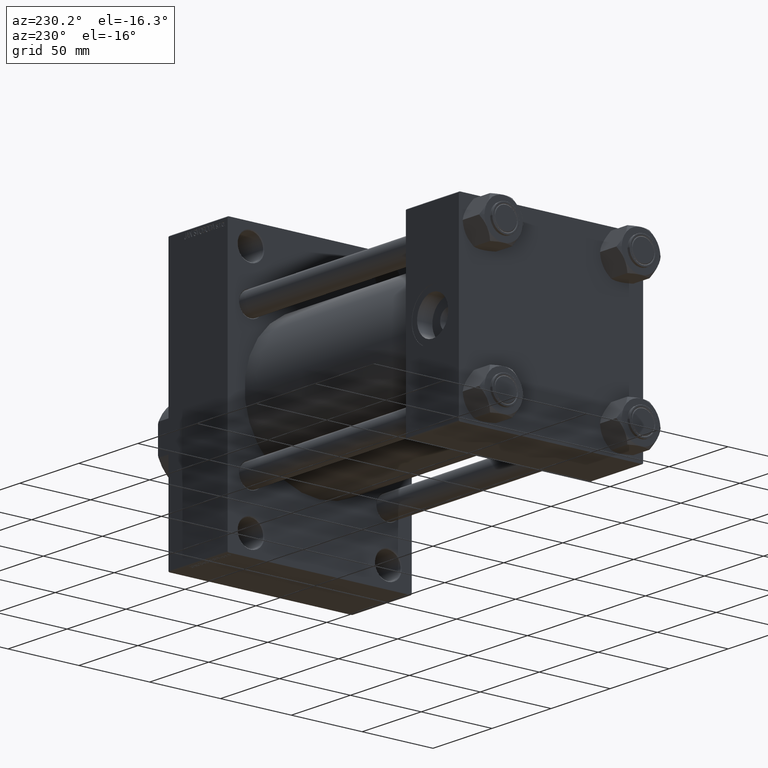
[diagram: clean part render]
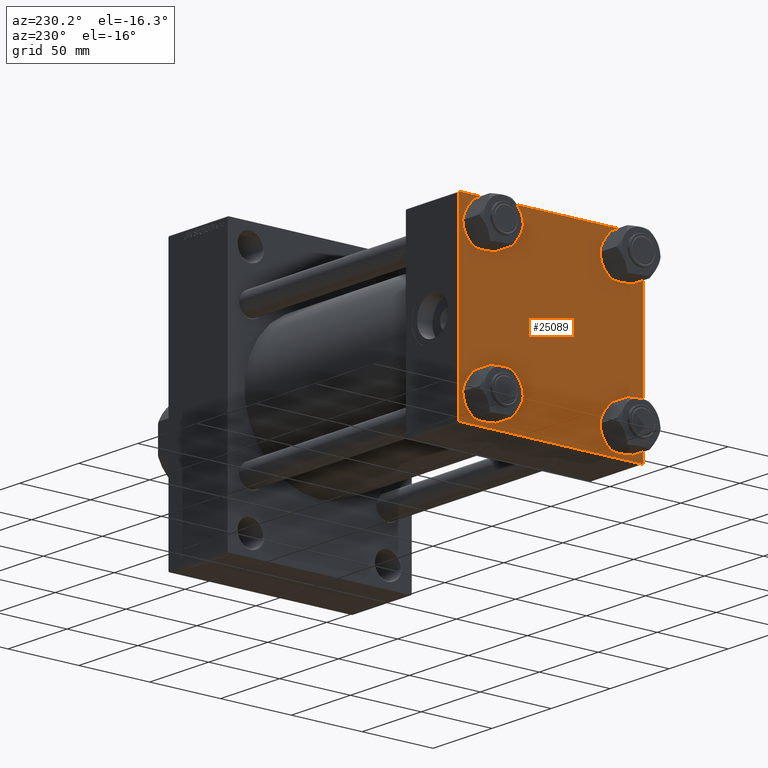
[diagram: same view with one face highlighted and labeled with its STEP entity id]
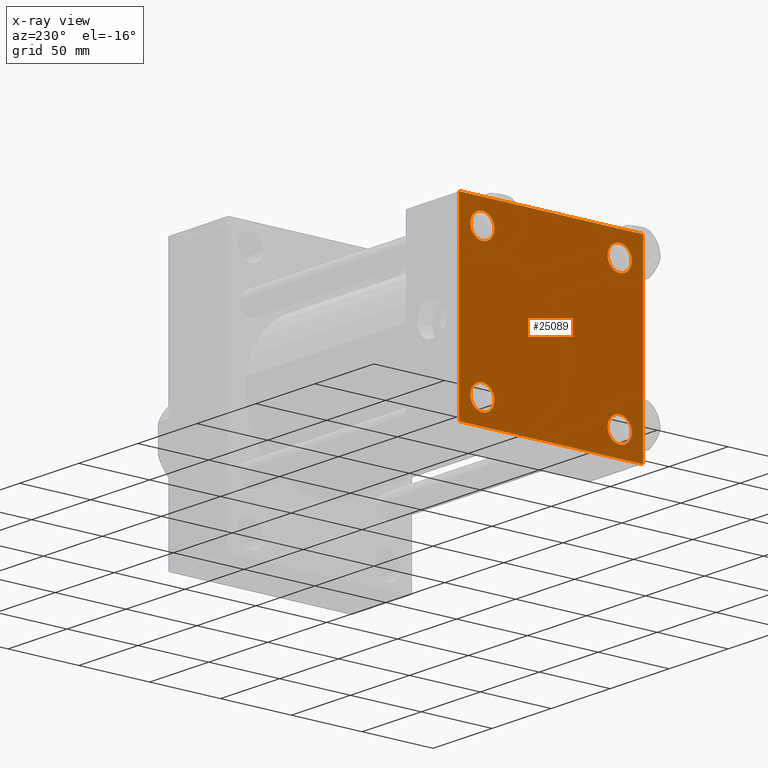
[diagram: x-ray of the same camera — body ghosted, the highlighted face saturated]
A machine part, auxiliary view. The second image highlights one B-rep face of the part: STEP entity #25089.
The next image is the same camera in x-ray: the body ghosted, the highlighted face saturated — about 0% of this face is hidden behind the body in this view.
In plain terms, the highlighted planar face has unit normal (-1, 0, 0).
Its self-contained STEP definition (entity closure, byte-faithful):
#50 = DIRECTION ( 'NONE',  ( 0.000000000000000000, 0.000000000000000000, 1.000000000000000000 ) ) ;
#341 = CARTESIAN_POINT ( 'NONE',  ( 0.000000000000000000, 65.00000000000000000, -64.99999999999998579 ) ) ;
#348 = CARTESIAN_POINT ( 'NONE',  ( 0.000000000000000000, -64.49999999999994316, -65.00000000000000000 ) ) ;
#444 = LINE ( 'NONE', #4795, #8069 ) ;
#877 = ORIENTED_EDGE ( 'NONE', *, *, #10914, .T. ) ;
#1739 = CIRCLE ( 'NONE', #29660, 8.500000000000007105 ) ;
#2500 = DIRECTION ( 'NONE',  ( 0.000000000000000000, 0.000000000000000000, 1.000000000000000000 ) ) ;
#2782 = LINE ( 'NONE', #32388, #3730 ) ;
#3037 = DIRECTION ( 'NONE',  ( 0.000000000000000000, 0.000000000000000000, 1.000000000000000000 ) ) ;
#3500 = CARTESIAN_POINT ( 'NONE',  ( 0.000000000000000000, 48.45000000000000995, 56.95000000000002416 ) ) ;
#3523 = DIRECTION ( 'NONE',  ( 1.000000000000000000, -0.000000000000000000, 0.000000000000000000 ) ) ;
#3730 = VECTOR ( 'NONE', #43516, 1000.000000000000000 ) ;
#4037 = EDGE_CURVE ( 'NONE', #20264, #32125, #26768, .T. ) ;
#4182 = ORIENTED_EDGE ( 'NONE', *, *, #46093, .T. ) ;
#4229 = AXIS2_PLACEMENT_3D ( 'NONE', #29167, #18230, #50 ) ;
#4795 = CARTESIAN_POINT ( 'NONE',  ( 0.000000000000000000, -65.00000000000000000, 65.00000000000000000 ) ) ;
#4888 = VERTEX_POINT ( 'NONE', #43156 ) ;
#5146 = ORIENTED_EDGE ( 'NONE', *, *, #22278, .T. ) ;
#5953 = EDGE_CURVE ( 'NONE', #24107, #20264, #9529, .T. ) ;
#6008 = DIRECTION ( 'NONE',  ( 0.000000000000000000, 0.000000000000000000, 1.000000000000000000 ) ) ;
#6447 = DIRECTION ( 'NONE',  ( 0.000000000000000000, 0.000000000000000000, 1.000000000000000000 ) ) ;
#6735 = CARTESIAN_POINT ( 'NONE',  ( 0.000000000000000000, 48.45000000000000995, 48.45000000000001705 ) ) ;
#6920 = DIRECTION ( 'NONE',  ( 1.000000000000000000, -0.000000000000000000, 0.000000000000000000 ) ) ;
#7768 = VECTOR ( 'NONE', #38964, 1000.000000000000000 ) ;
#7822 = EDGE_LOOP ( 'NONE', ( #28182, #877 ) ) ;
#8069 = VECTOR ( 'NONE', #44812, 1000.000000000000000 ) ;
#8886 = CARTESIAN_POINT ( 'NONE',  ( 0.000000000000000000, -64.75000000000176215, -64.74999999999816680 ) ) ;
#9493 = EDGE_LOOP ( 'NONE', ( #24057, #40427 ) ) ;
#9529 = LINE ( 'NONE', #28209, #23877 ) ;
#9870 = CARTESIAN_POINT ( 'NONE',  ( 0.000000000000000000, 64.49999999999997158, -64.99999999999998579 ) ) ;
#9975 = FACE_BOUND ( 'NONE', #7822, .T. ) ;
#10750 = ORIENTED_EDGE ( 'NONE', *, *, #37768, .T. ) ;
#10791 = CIRCLE ( 'NONE', #20856, 8.500000000000007105 ) ;
#10914 = EDGE_CURVE ( 'NONE', #34012, #33128, #24717, .T. ) ;
#11177 = FACE_BOUND ( 'NONE', #37533, .T. ) ;
#11956 = LINE ( 'NONE', #29921, #39620 ) ;
#12423 = VERTEX_POINT ( 'NONE', #47051 ) ;
#12911 = EDGE_CURVE ( 'NONE', #25701, #20646, #29975, .T. ) ;
#13349 = DIRECTION ( 'NONE',  ( 1.000000000000000000, -0.000000000000000000, 0.000000000000000000 ) ) ;
#13607 = FACE_BOUND ( 'NONE', #18176, .T. ) ;
#13945 = CARTESIAN_POINT ( 'NONE',  ( 0.000000000000000000, 64.74999999999998579, 64.74999999999998579 ) ) ;
#13976 = CARTESIAN_POINT ( 'NONE',  ( 0.000000000000000000, 48.45000000000000995, 48.45000000000001705 ) ) ;
#15007 = EDGE_CURVE ( 'NONE', #18476, #22942, #2782, .T. ) ;
#15269 = DIRECTION ( 'NONE',  ( -1.000000000000000000, 0.000000000000000000, -0.000000000000000000 ) ) ;
#15284 = DIRECTION ( 'NONE',  ( 1.000000000000000000, -0.000000000000000000, 0.000000000000000000 ) ) ;
#15349 = DIRECTION ( 'NONE',  ( 0.000000000000000000, -1.000000000000000000, -1.067522139062650425E-16 ) ) ;
#15841 = DIRECTION ( 'NONE',  ( 0.000000000000000000, 0.000000000000000000, 1.000000000000000000 ) ) ;
#15885 = VERTEX_POINT ( 'NONE', #25521 ) ;
#17714 = ORIENTED_EDGE ( 'NONE', *, *, #44809, .T. ) ;
#18176 = EDGE_LOOP ( 'NONE', ( #4182, #10750 ) ) ;
#18181 = CIRCLE ( 'NONE', #4229, 8.500000000000007105 ) ;
#18230 = DIRECTION ( 'NONE',  ( 1.000000000000000000, -0.000000000000000000, 0.000000000000000000 ) ) ;
#18476 = VERTEX_POINT ( 'NONE', #26619 ) ;
#18673 = ORIENTED_EDGE ( 'NONE', *, *, #21949, .T. ) ;
#20106 = ORIENTED_EDGE ( 'NONE', *, *, #15007, .F. ) ;
#20264 = VERTEX_POINT ( 'NONE', #9870 ) ;
#20646 = VERTEX_POINT ( 'NONE', #3500 ) ;
#20741 = LINE ( 'NONE', #13945, #29429 ) ;
#20773 = DIRECTION ( 'NONE',  ( 1.000000000000000000, -0.000000000000000000, 0.000000000000000000 ) ) ;
#20856 = AXIS2_PLACEMENT_3D ( 'NONE', #6735, #21523, #6008 ) ;
#20929 = CARTESIAN_POINT ( 'NONE',  ( 0.000000000000000000, -48.44999999999999574, 48.45000000000003126 ) ) ;
#20951 = AXIS2_PLACEMENT_3D ( 'NONE', #37122, #15269, #41237 ) ;
#20975 = LINE ( 'NONE', #40144, #38892 ) ;
#21175 = EDGE_CURVE ( 'NONE', #45145, #44627, #28623, .T. ) ;
#21523 = DIRECTION ( 'NONE',  ( 1.000000000000000000, -0.000000000000000000, 0.000000000000000000 ) ) ;
#21949 = EDGE_CURVE ( 'NONE', #20646, #25701, #10791, .T. ) ;
#21975 = VERTEX_POINT ( 'NONE', #39719 ) ;
#22278 = EDGE_CURVE ( 'NONE', #18476, #21975, #20741, .T. ) ;
#22495 = EDGE_CURVE ( 'NONE', #44627, #45145, #25553, .T. ) ;
#22942 = VERTEX_POINT ( 'NONE', #45257 ) ;
#23090 = CARTESIAN_POINT ( 'NONE',  ( 0.000000000000000000, 48.45000000000000995, 39.95000000000000284 ) ) ;
#23746 = EDGE_CURVE ( 'NONE', #32125, #12423, #42131, .T. ) ;
#23877 = VECTOR ( 'NONE', #31852, 1000.000000000000114 ) ;
#24057 = ORIENTED_EDGE ( 'NONE', *, *, #22495, .T. ) ;
#24107 = VERTEX_POINT ( 'NONE', #41262 ) ;
#24505 = CARTESIAN_POINT ( 'NONE',  ( 0.000000000000000000, -48.44999999999999574, -48.45000000000003126 ) ) ;
#24717 = CIRCLE ( 'NONE', #30120, 8.500000000000007105 ) ;
#24979 = CIRCLE ( 'NONE', #39687, 8.500000000000007105 ) ;
#25089 = ADVANCED_FACE ( 'NONE', ( #13607, #43198, #9975, #11177, #29617 ), #33967, .T. ) ;
#25521 = CARTESIAN_POINT ( 'NONE',  ( 0.000000000000000000, -48.44999999999999574, 56.95000000000003837 ) ) ;
#25553 = CIRCLE ( 'NONE', #44129, 8.500000000000007105 ) ;
#25701 = VERTEX_POINT ( 'NONE', #23090 ) ;
#26354 = CARTESIAN_POINT ( 'NONE',  ( 0.000000000000000000, -48.44999999999999574, -39.95000000000001705 ) ) ;
#26619 = CARTESIAN_POINT ( 'NONE',  ( 0.000000000000000000, 64.49999999999997158, 65.00000000000001421 ) ) ;
#26768 = LINE ( 'NONE', #341, #29981 ) ;
#28182 = ORIENTED_EDGE ( 'NONE', *, *, #43039, .T. ) ;
#28183 = EDGE_LOOP ( 'NONE', ( #17714, #31776, #32189, #37111, #33296, #34094, #20106, #5146 ) ) ;
#28209 = CARTESIAN_POINT ( 'NONE',  ( 0.000000000000000000, 64.74999999999997158, -64.74999999999997158 ) ) ;
#28508 = CARTESIAN_POINT ( 'NONE',  ( 0.000000000000000000, 48.45000000000000995, -48.45000000000001705 ) ) ;
#28623 = CIRCLE ( 'NONE', #29391, 8.500000000000007105 ) ;
#29167 = CARTESIAN_POINT ( 'NONE',  ( 0.000000000000000000, -48.44999999999999574, 48.45000000000003126 ) ) ;
#29391 = AXIS2_PLACEMENT_3D ( 'NONE', #33980, #15284, #30105 ) ;
#29429 = VECTOR ( 'NONE', #35790, 1000.000000000000114 ) ;
#29617 = FACE_OUTER_BOUND ( 'NONE', #28183, .T. ) ;
#29660 = AXIS2_PLACEMENT_3D ( 'NONE', #40389, #3523, #6447 ) ;
#29921 = CARTESIAN_POINT ( 'NONE',  ( -0.000000000000000000, -64.74999999999819522, 64.75000000000179057 ) ) ;
#29975 = CIRCLE ( 'NONE', #46229, 8.500000000000007105 ) ;
#29981 = VECTOR ( 'NONE', #15349, 1000.000000000000000 ) ;
#30105 = DIRECTION ( 'NONE',  ( 0.000000000000000000, 0.000000000000000000, 1.000000000000000000 ) ) ;
#30120 = AXIS2_PLACEMENT_3D ( 'NONE', #28508, #6920, #3037 ) ;
#30391 = ORIENTED_EDGE ( 'NONE', *, *, #12911, .T. ) ;
#31776 = ORIENTED_EDGE ( 'NONE', *, *, #5953, .T. ) ;
#31852 = DIRECTION ( 'NONE',  ( -0.000000000000000000, -0.7071067811865474617, -0.7071067811865474617 ) ) ;
#32125 = VERTEX_POINT ( 'NONE', #348 ) ;
#32189 = ORIENTED_EDGE ( 'NONE', *, *, #4037, .T. ) ;
#32388 = CARTESIAN_POINT ( 'NONE',  ( 0.000000000000000000, 65.00000000000000000, 65.00000000000001421 ) ) ;
#32399 = DIRECTION ( 'NONE',  ( 0.000000000000000000, 0.000000000000000000, -1.000000000000000000 ) ) ;
#33128 = VERTEX_POINT ( 'NONE', #43111 ) ;
#33296 = ORIENTED_EDGE ( 'NONE', *, *, #36573, .F. ) ;
#33967 = PLANE ( 'NONE',  #20951 ) ;
#33980 = CARTESIAN_POINT ( 'NONE',  ( 0.000000000000000000, -48.44999999999999574, -48.45000000000003126 ) ) ;
#34012 = VERTEX_POINT ( 'NONE', #34485 ) ;
#34094 = ORIENTED_EDGE ( 'NONE', *, *, #40966, .T. ) ;
#34485 = CARTESIAN_POINT ( 'NONE',  ( 0.000000000000000000, 48.45000000000000995, -56.95000000000002416 ) ) ;
#35450 = VERTEX_POINT ( 'NONE', #38315 ) ;
#35790 = DIRECTION ( 'NONE',  ( 0.000000000000000000, 0.7071067811865474617, -0.7071067811865474617 ) ) ;
#36573 = EDGE_CURVE ( 'NONE', #4888, #12423, #444, .T. ) ;
#37111 = ORIENTED_EDGE ( 'NONE', *, *, #23746, .T. ) ;
#37122 = CARTESIAN_POINT ( 'NONE',  ( 0.000000000000000000, 0.000000000000000000, 0.000000000000000000 ) ) ;
#37533 = EDGE_LOOP ( 'NONE', ( #18673, #30391 ) ) ;
#37768 = EDGE_CURVE ( 'NONE', #35450, #15885, #18181, .T. ) ;
#38315 = CARTESIAN_POINT ( 'NONE',  ( 0.000000000000000000, -48.44999999999999574, 39.95000000000001705 ) ) ;
#38892 = VECTOR ( 'NONE', #32399, 1000.000000000000000 ) ;
#38964 = DIRECTION ( 'NONE',  ( 0.000000000000000000, -0.7071067811865279218, 0.7071067811865671127 ) ) ;
#39620 = VECTOR ( 'NONE', #44695, 1000.000000000000000 ) ;
#39687 = AXIS2_PLACEMENT_3D ( 'NONE', #20929, #47600, #2500 ) ;
#39719 = CARTESIAN_POINT ( 'NONE',  ( 0.000000000000000000, 65.00000000000000000, 64.49999999999998579 ) ) ;
#40144 = CARTESIAN_POINT ( 'NONE',  ( 0.000000000000000000, 65.00000000000000000, 65.00000000000001421 ) ) ;
#40389 = CARTESIAN_POINT ( 'NONE',  ( 0.000000000000000000, 48.45000000000000995, -48.45000000000001705 ) ) ;
#40427 = ORIENTED_EDGE ( 'NONE', *, *, #21175, .T. ) ;
#40966 = EDGE_CURVE ( 'NONE', #4888, #22942, #11956, .T. ) ;
#41237 = DIRECTION ( 'NONE',  ( -0.000000000000000000, 0.000000000000000000, 1.000000000000000000 ) ) ;
#41262 = CARTESIAN_POINT ( 'NONE',  ( 0.000000000000000000, 65.00000000000000000, -64.49999999999995737 ) ) ;
#42131 = LINE ( 'NONE', #8886, #7768 ) ;
#43039 = EDGE_CURVE ( 'NONE', #33128, #34012, #1739, .T. ) ;
#43111 = CARTESIAN_POINT ( 'NONE',  ( 0.000000000000000000, 48.45000000000000995, -39.95000000000000284 ) ) ;
#43156 = CARTESIAN_POINT ( 'NONE',  ( 0.000000000000000000, -65.00000000000000000, 64.50000000000000000 ) ) ;
#43198 = FACE_BOUND ( 'NONE', #9493, .T. ) ;
#43225 = CARTESIAN_POINT ( 'NONE',  ( 0.000000000000000000, -48.44999999999999574, -56.95000000000003837 ) ) ;
#43516 = DIRECTION ( 'NONE',  ( 0.000000000000000000, -1.000000000000000000, -1.067522139062650425E-16 ) ) ;
#43803 = DIRECTION ( 'NONE',  ( 0.000000000000000000, 0.000000000000000000, 1.000000000000000000 ) ) ;
#44129 = AXIS2_PLACEMENT_3D ( 'NONE', #24505, #13349, #15841 ) ;
#44627 = VERTEX_POINT ( 'NONE', #26354 ) ;
#44695 = DIRECTION ( 'NONE',  ( -0.000000000000000000, 0.7071067811865672237, 0.7071067811865279218 ) ) ;
#44809 = EDGE_CURVE ( 'NONE', #21975, #24107, #20975, .T. ) ;
#44812 = DIRECTION ( 'NONE',  ( 0.000000000000000000, 0.000000000000000000, -1.000000000000000000 ) ) ;
#45145 = VERTEX_POINT ( 'NONE', #43225 ) ;
#45257 = CARTESIAN_POINT ( 'NONE',  ( 0.000000000000000000, -64.49999999999997158, 65.00000000000000000 ) ) ;
#46093 = EDGE_CURVE ( 'NONE', #15885, #35450, #24979, .T. ) ;
#46229 = AXIS2_PLACEMENT_3D ( 'NONE', #13976, #20773, #43803 ) ;
#47051 = CARTESIAN_POINT ( 'NONE',  ( 0.000000000000000000, -65.00000000000000000, -64.49999999999991473 ) ) ;
#47600 = DIRECTION ( 'NONE',  ( 1.000000000000000000, -0.000000000000000000, 0.000000000000000000 ) ) ;